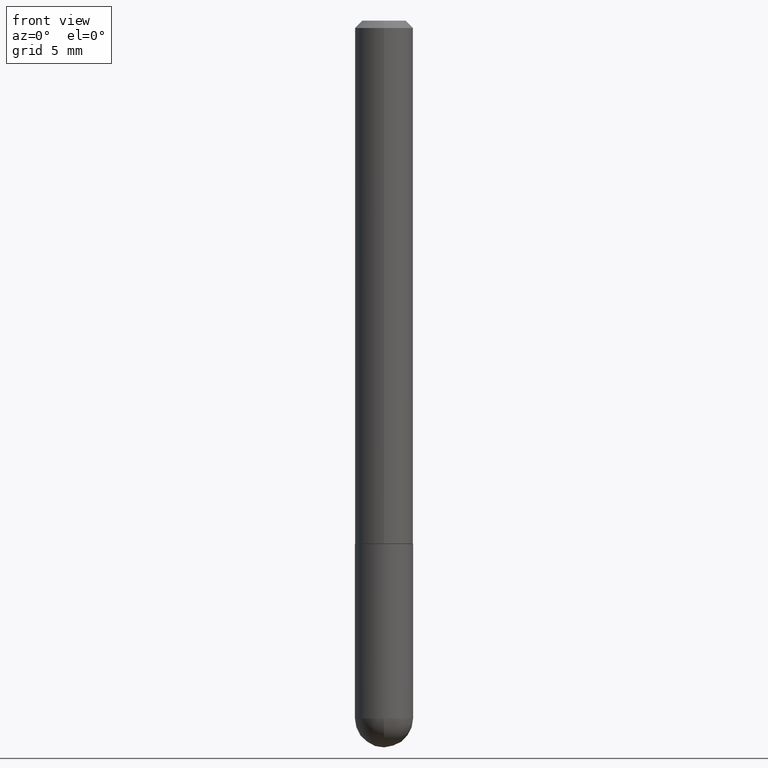
[diagram: clean part render]
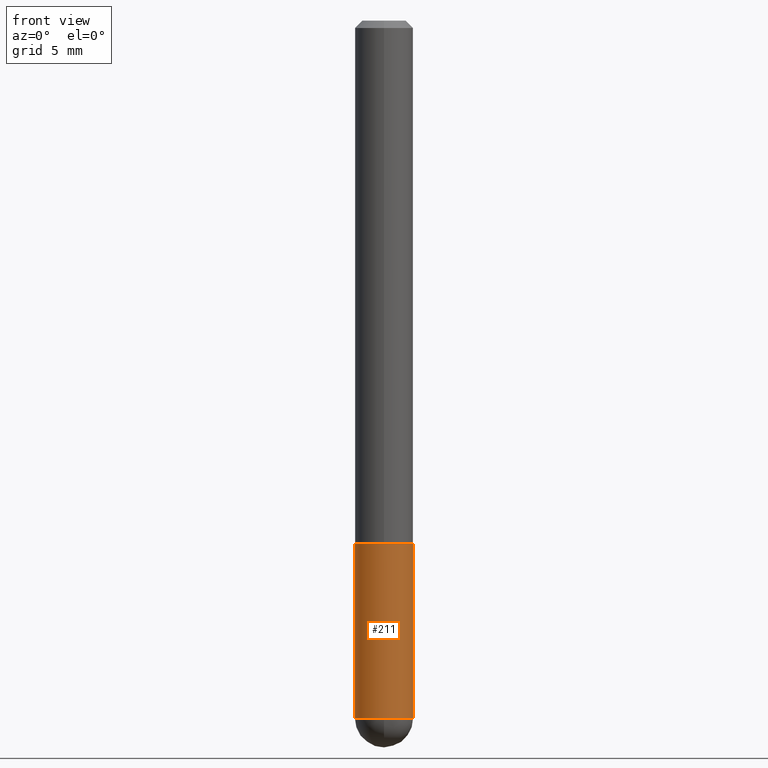
[diagram: same view with one face highlighted and labeled with its STEP entity id]
A machine part, front view. The second image highlights one B-rep face of the part: STEP entity #211.
In plain terms, the highlighted cylindrical surface (edge-blend (fillet) strip) has radius 2.0002 mm, axis along (-0, 0, 1).
Its self-contained STEP definition (entity closure, byte-faithful):
#5 = CARTESIAN_POINT ( 'NONE',  ( 4.621324676488362597E-29, -6.598026860078835823E-15, -1.889750000000000263 ) ) ;
#6 = VECTOR ( 'NONE', #71, 39.37007874015748143 ) ;
#7 = EDGE_LOOP ( 'NONE', ( #60, #358, #212, #327, #181 ) ) ;
#29 = VERTEX_POINT ( 'NONE', #366 ) ;
#32 = VERTEX_POINT ( 'NONE', #278 ) ;
#35 = DIRECTION ( 'NONE',  ( 1.000000000000000000, -6.982962677686261977E-15, 0.000000000000000000 ) ) ;
#49 = DIRECTION ( 'NONE',  ( -2.445468806185136877E-29, 3.491481338843145188E-15, 1.000000000000000000 ) ) ;
#57 = EDGE_CURVE ( 'NONE', #151, #29, #163, .T. ) ;
#60 = ORIENTED_EDGE ( 'NONE', *, *, #289, .F. ) ;
#71 = DIRECTION ( 'NONE',  ( -2.445468806185136877E-29, 3.491481338843145188E-15, 1.000000000000000000 ) ) ;
#73 = CARTESIAN_POINT ( 'NONE',  ( 4.621324676488362597E-29, -6.598026860078835823E-15, -1.889750000000000263 ) ) ;
#85 = CARTESIAN_POINT ( 'NONE',  ( 0.000000000000000000, 0.000000000000000000, 0.000000000000000000 ) ) ;
#89 = CARTESIAN_POINT ( 'NONE',  ( -5.595524044110351185E-16, -0.07875000000000693945, -1.889750000000000041 ) ) ;
#94 = EDGE_CURVE ( 'NONE', #306, #312, #322, .T. ) ;
#96 = EDGE_CURVE ( 'NONE', #32, #306, #367, .T. ) ;
#107 = CARTESIAN_POINT ( 'NONE',  ( -0.07874999999999997280, 5.595524044110787031E-16, -3.873661383575737091E-30 ) ) ;
#110 = CARTESIAN_POINT ( 'NONE',  ( 3.465962939006193759E-29, -4.948476501542390442E-15, -1.417300000000000004 ) ) ;
#118 = CYLINDRICAL_SURFACE ( 'NONE', #331, 0.07874999999999997280 ) ;
#120 = DIRECTION ( 'NONE',  ( -2.445468806185136597E-29, 3.491481338843145583E-15, 1.000000000000000000 ) ) ;
#138 = AXIS2_PLACEMENT_3D ( 'NONE', #5, #175, #303 ) ;
#149 = DIRECTION ( 'NONE',  ( 1.000000000000000000, -6.982962677686264344E-15, 0.000000000000000000 ) ) ;
#151 = VERTEX_POINT ( 'NONE', #393 ) ;
#154 = LINE ( 'NONE', #107, #6 ) ;
#163 = CIRCLE ( 'NONE', #383, 0.07875000000000000056 ) ;
#170 = VECTOR ( 'NONE', #49, 39.37007874015748143 ) ;
#175 = DIRECTION ( 'NONE',  ( -2.445468806185136597E-29, 3.491481338843145583E-15, 1.000000000000000000 ) ) ;
#181 = ORIENTED_EDGE ( 'NONE', *, *, #57, .F. ) ;
#195 = AXIS2_PLACEMENT_3D ( 'NONE', #73, #277, #149 ) ;
#211 = ADVANCED_FACE ( 'NONE', ( #316 ), #118, .T. ) ;
#212 = ORIENTED_EDGE ( 'NONE', *, *, #94, .T. ) ;
#221 = CARTESIAN_POINT ( 'NONE',  ( 0.07874999999999997280, -5.499083108677933457E-16, 3.839989210939298316E-30 ) ) ;
#225 = DIRECTION ( 'NONE',  ( 1.000000000000000000, -6.982962677686267499E-15, 4.876176775795935793E-29 ) ) ;
#234 = EDGE_CURVE ( 'NONE', #312, #29, #345, .T. ) ;
#277 = DIRECTION ( 'NONE',  ( -2.445468806185136597E-29, 3.491481338843145583E-15, 1.000000000000000000 ) ) ;
#278 = CARTESIAN_POINT ( 'NONE',  ( -0.07874999999999997280, -5.213699276399534331E-15, -1.889750000000000263 ) ) ;
#289 = EDGE_CURVE ( 'NONE', #32, #151, #154, .T. ) ;
#303 = DIRECTION ( 'NONE',  ( 1.000000000000000000, -6.982962677686264344E-15, 0.000000000000000000 ) ) ;
#306 = VERTEX_POINT ( 'NONE', #89 ) ;
#312 = VERTEX_POINT ( 'NONE', #346 ) ;
#316 = FACE_OUTER_BOUND ( 'NONE', #7, .T. ) ;
#322 = CIRCLE ( 'NONE', #138, 0.07874999999999997280 ) ;
#327 = ORIENTED_EDGE ( 'NONE', *, *, #234, .T. ) ;
#331 = AXIS2_PLACEMENT_3D ( 'NONE', #85, #120, #225 ) ;
#333 = DIRECTION ( 'NONE',  ( -2.445468806185136597E-29, 3.491481338843145583E-15, 1.000000000000000000 ) ) ;
#345 = LINE ( 'NONE', #221, #170 ) ;
#346 = CARTESIAN_POINT ( 'NONE',  ( 0.07874999999999997280, -6.323159991678405690E-15, -1.889750000000000263 ) ) ;
#358 = ORIENTED_EDGE ( 'NONE', *, *, #96, .T. ) ;
#366 = CARTESIAN_POINT ( 'NONE',  ( 0.07875000000000000056, -5.498384812410182999E-15, -1.417300000000000004 ) ) ;
#367 = CIRCLE ( 'NONE', #195, 0.07874999999999997280 ) ;
#383 = AXIS2_PLACEMENT_3D ( 'NONE', #110, #333, #35 ) ;
#393 = CARTESIAN_POINT ( 'NONE',  ( -0.07875000000000000056, -5.213699276399534331E-15, -1.417300000000000004 ) ) ;